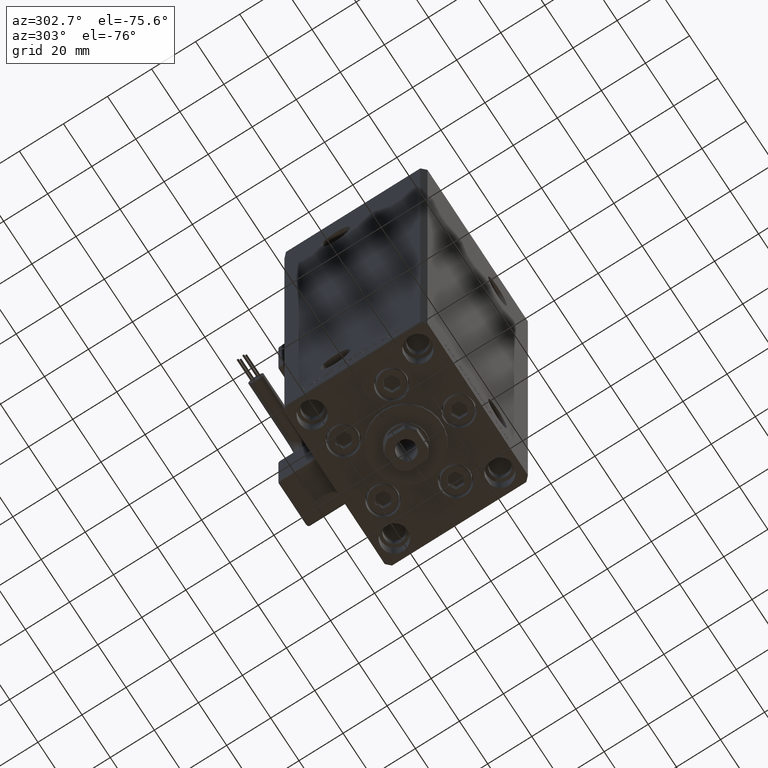
[diagram: clean part render]
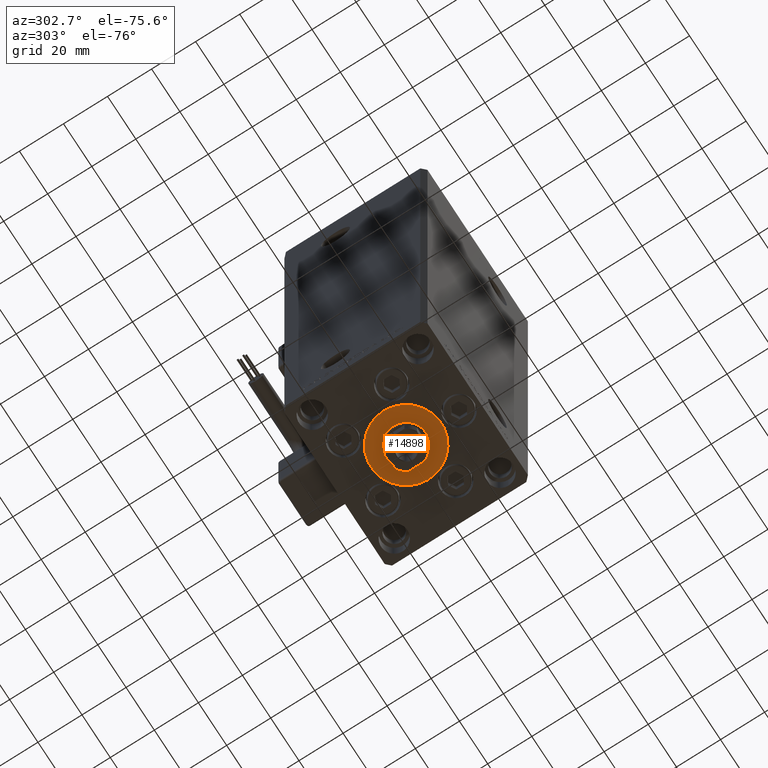
[diagram: same view with one face highlighted and labeled with its STEP entity id]
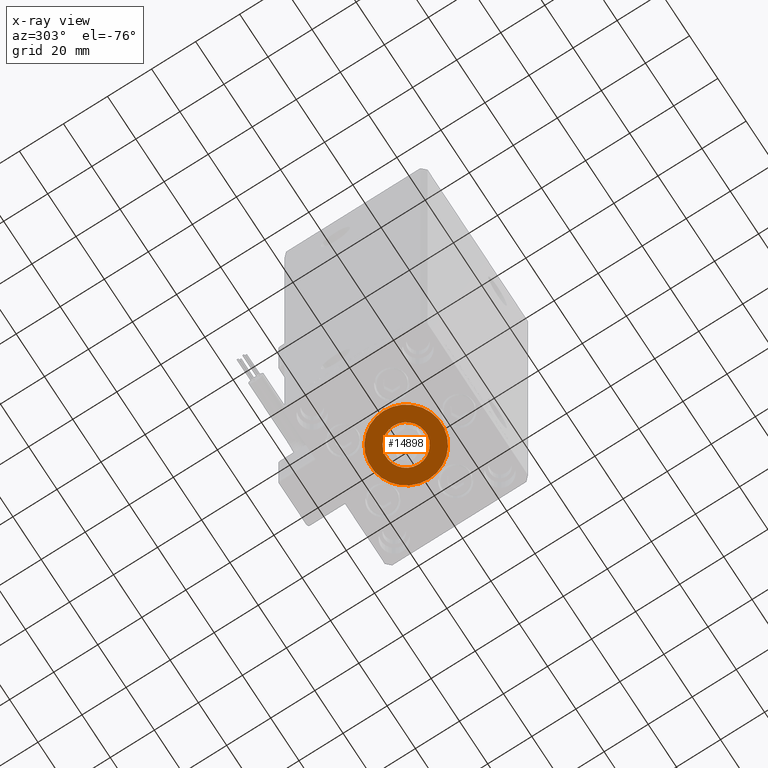
[diagram: x-ray of the same camera — body ghosted, the highlighted face saturated]
A machine part, auxiliary view. The second image highlights one B-rep face of the part: STEP entity #14898.
The next image is the same camera in x-ray: the body ghosted, the highlighted face saturated — about 0% of this face is hidden behind the body in this view.
In plain terms, the highlighted planar face has unit normal (0, 0, -1).
Its self-contained STEP definition (entity closure, byte-faithful):
#529 = DIRECTION ( 'NONE',  ( 1.000000000000000000, 0.000000000000000000, 0.000000000000000000 ) ) ;
#1436 = EDGE_CURVE ( 'NONE', #40169, #40529, #23863, .T. ) ;
#1768 = CARTESIAN_POINT ( 'NONE',  ( 16.00000000000000355, -4.979459025271462852E-15, 2.000000000000000000 ) ) ;
#2948 = AXIS2_PLACEMENT_3D ( 'NONE', #48635, #33182, #12118 ) ;
#2962 = DIRECTION ( 'NONE',  ( 1.000000000000000000, 0.000000000000000000, 0.000000000000000000 ) ) ;
#8022 = AXIS2_PLACEMENT_3D ( 'NONE', #23239, #39505, #2962 ) ;
#8654 = EDGE_LOOP ( 'NONE', ( #47975, #33654 ) ) ;
#9348 = EDGE_CURVE ( 'NONE', #13615, #35329, #40387, .T. ) ;
#10570 = CIRCLE ( 'NONE', #8022, 16.00000000000000355 ) ;
#12118 = DIRECTION ( 'NONE',  ( 1.000000000000000000, 0.000000000000000000, 0.000000000000000000 ) ) ;
#13068 = EDGE_CURVE ( 'NONE', #40529, #40169, #10570, .T. ) ;
#13615 = VERTEX_POINT ( 'NONE', #22847 ) ;
#14750 = EDGE_CURVE ( 'NONE', #35329, #13615, #43004, .T. ) ;
#14898 = ADVANCED_FACE ( 'NONE', ( #30214, #42204 ), #34233, .T. ) ;
#17389 = AXIS2_PLACEMENT_3D ( 'NONE', #30628, #38370, #45373 ) ;
#17425 = CARTESIAN_POINT ( 'NONE',  ( 0.000000000000000000, -6.938893903907228378E-15, 2.000000000000000000 ) ) ;
#18770 = AXIS2_PLACEMENT_3D ( 'NONE', #32292, #20796, #529 ) ;
#18973 = ORIENTED_EDGE ( 'NONE', *, *, #1436, .T. ) ;
#19220 = CARTESIAN_POINT ( 'NONE',  ( -16.00000000000000355, -6.938893903907228378E-15, 2.000000000000000000 ) ) ;
#20796 = DIRECTION ( 'NONE',  ( 0.000000000000000000, 0.000000000000000000, 1.000000000000000000 ) ) ;
#22847 = CARTESIAN_POINT ( 'NONE',  ( -9.000000000000000000, -5.836711784674610467E-15, 2.000000000000000000 ) ) ;
#23239 = CARTESIAN_POINT ( 'NONE',  ( 0.000000000000000000, -6.938893903907228378E-15, 2.000000000000000000 ) ) ;
#23863 = CIRCLE ( 'NONE', #18770, 16.00000000000000355 ) ;
#23889 = EDGE_LOOP ( 'NONE', ( #18973, #44296 ) ) ;
#27879 = CARTESIAN_POINT ( 'NONE',  ( 9.000000000000000000, -6.938893903907228378E-15, 2.000000000000000000 ) ) ;
#30214 = FACE_BOUND ( 'NONE', #8654, .T. ) ;
#30628 = CARTESIAN_POINT ( 'NONE',  ( 0.000000000000000000, -6.938893903907228378E-15, 2.000000000000000000 ) ) ;
#32292 = CARTESIAN_POINT ( 'NONE',  ( 0.000000000000000000, -6.938893903907228378E-15, 2.000000000000000000 ) ) ;
#33182 = DIRECTION ( 'NONE',  ( 0.000000000000000000, 0.000000000000000000, 1.000000000000000000 ) ) ;
#33654 = ORIENTED_EDGE ( 'NONE', *, *, #9348, .F. ) ;
#34233 = PLANE ( 'NONE',  #46374 ) ;
#35329 = VERTEX_POINT ( 'NONE', #27879 ) ;
#38370 = DIRECTION ( 'NONE',  ( 0.000000000000000000, 0.000000000000000000, 1.000000000000000000 ) ) ;
#39505 = DIRECTION ( 'NONE',  ( 0.000000000000000000, 0.000000000000000000, 1.000000000000000000 ) ) ;
#40169 = VERTEX_POINT ( 'NONE', #19220 ) ;
#40387 = CIRCLE ( 'NONE', #17389, 9.000000000000000000 ) ;
#40529 = VERTEX_POINT ( 'NONE', #1768 ) ;
#41943 = DIRECTION ( 'NONE',  ( 0.000000000000000000, 0.000000000000000000, 1.000000000000000000 ) ) ;
#42204 = FACE_OUTER_BOUND ( 'NONE', #23889, .T. ) ;
#43004 = CIRCLE ( 'NONE', #2948, 9.000000000000000000 ) ;
#44296 = ORIENTED_EDGE ( 'NONE', *, *, #13068, .T. ) ;
#45373 = DIRECTION ( 'NONE',  ( 1.000000000000000000, 0.000000000000000000, 0.000000000000000000 ) ) ;
#46374 = AXIS2_PLACEMENT_3D ( 'NONE', #17425, #41943, #46720 ) ;
#46720 = DIRECTION ( 'NONE',  ( 1.000000000000000000, 0.000000000000000000, -0.000000000000000000 ) ) ;
#47975 = ORIENTED_EDGE ( 'NONE', *, *, #14750, .F. ) ;
#48635 = CARTESIAN_POINT ( 'NONE',  ( 0.000000000000000000, -6.938893903907228378E-15, 2.000000000000000000 ) ) ;